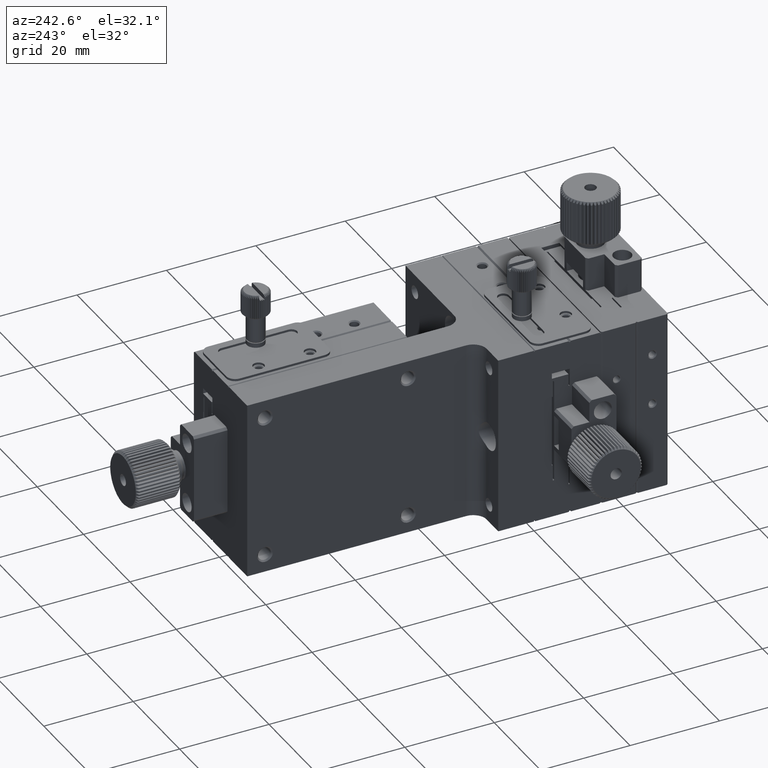
[diagram: clean part render]
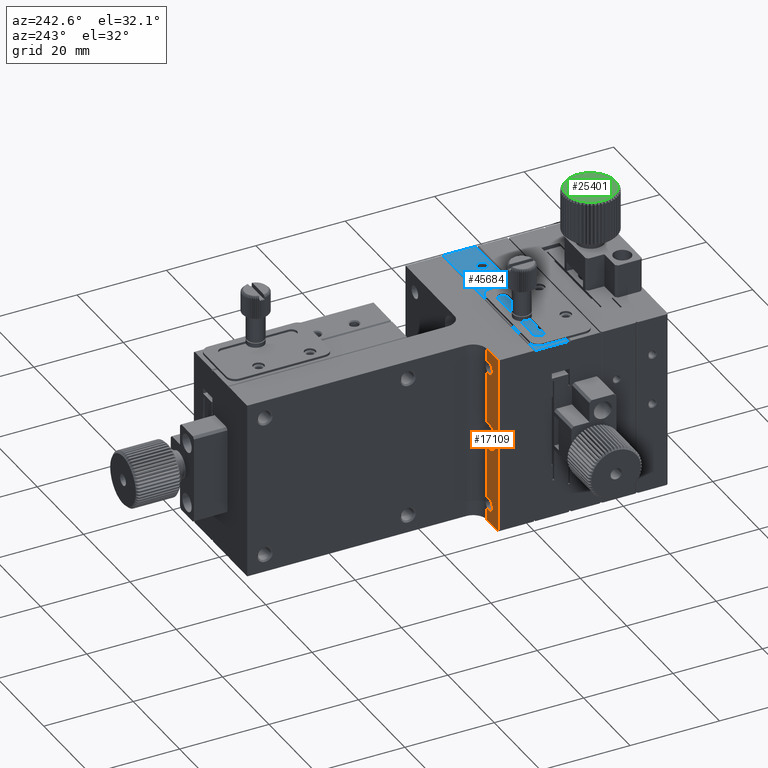
[diagram: same view with three faces highlighted in distinct colors, each labeled with its STEP entity id]
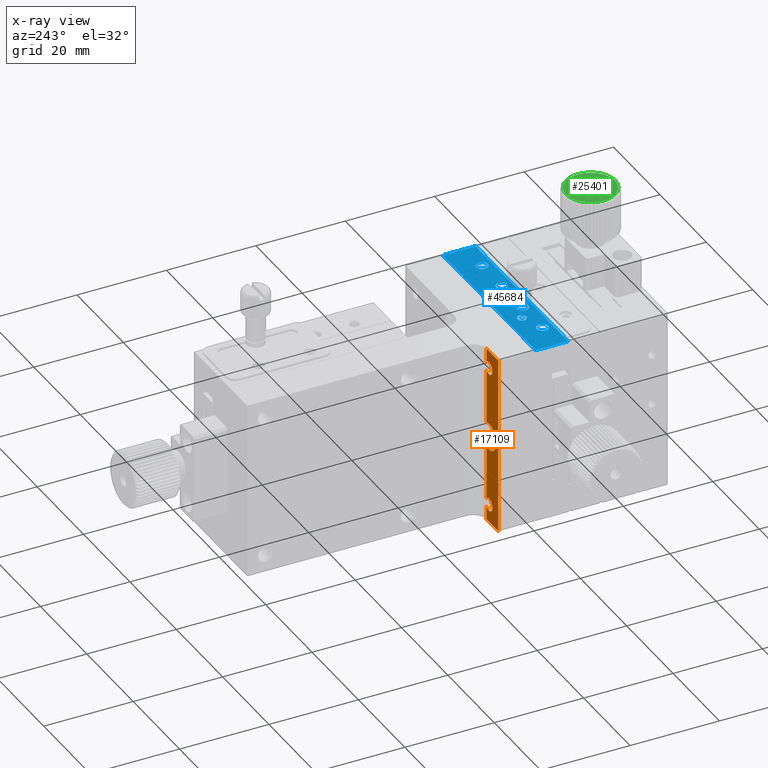
[diagram: x-ray of the same camera — body ghosted, the three highlighted faces saturated]
A machine part, auxiliary view with three faces highlighted in distinct colors.
The next image is the same camera in x-ray (body ghosted, the three faces saturated) — at least one of them is partly hidden behind the body in this view.
Their STEP definitions:

[orange] entity #17109 — the highlighted planar face has unit normal (0, 1, 0).
#295 = VECTOR ( 'NONE', #35096, 1000.000000000000000 ) ;
#416 = DIRECTION ( 'NONE',  ( 0.000000000000000000, -1.000000000000000000, 0.000000000000000000 ) ) ;
#515 = CARTESIAN_POINT ( 'NONE',  ( 19.00000000000000000, 8.000000000000000000, -40.00000000000000000 ) ) ;
#543 = ORIENTED_EDGE ( 'NONE', *, *, #46204, .T. ) ;
#919 = VERTEX_POINT ( 'NONE', #55570 ) ;
#979 = CARTESIAN_POINT ( 'NONE',  ( 5.000000000000030198, 8.000000000000000000, -40.00000000000000000 ) ) ;
#1668 = CARTESIAN_POINT ( 'NONE',  ( 5.000000000000030198, 8.000000000000000000, -5.015197025212317250 ) ) ;
#2906 = CARTESIAN_POINT ( 'NONE',  ( 2.797762022055394482E-14, 8.000000000000000000, 0.000000000000000000 ) ) ;
#4990 = DIRECTION ( 'NONE',  ( 0.000000000000000000, -1.000000000000000000, 0.000000000000000000 ) ) ;
#6053 = CARTESIAN_POINT ( 'NONE',  ( 5.000000000000030198, 8.000000000000000000, -40.00000000000000000 ) ) ;
#7003 = CARTESIAN_POINT ( 'NONE',  ( 5.000000000000031974, 8.000000000000000000, -34.98480297478769074 ) ) ;
#7033 = VERTEX_POINT ( 'NONE', #56806 ) ;
#8418 = DIRECTION ( 'NONE',  ( -0.000000000000000000, 0.000000000000000000, -1.000000000000000000 ) ) ;
#8702 = ORIENTED_EDGE ( 'NONE', *, *, #27277, .F. ) ;
#9150 = ORIENTED_EDGE ( 'NONE', *, *, #9802, .T. ) ;
#9209 = DIRECTION ( 'NONE',  ( -0.000000000000000000, 0.000000000000000000, -1.000000000000000000 ) ) ;
#9629 = LINE ( 'NONE', #46719, #20673 ) ;
#9762 = FACE_OUTER_BOUND ( 'NONE', #22554, .T. ) ;
#9802 = EDGE_CURVE ( 'NONE', #38147, #7033, #23329, .T. ) ;
#10083 = LINE ( 'NONE', #28609, #37278 ) ;
#10367 = VERTEX_POINT ( 'NONE', #7003 ) ;
#10438 = VECTOR ( 'NONE', #13849, 1000.000000000000000 ) ;
#10811 = ORIENTED_EDGE ( 'NONE', *, *, #54390, .T. ) ;
#11015 = DIRECTION ( 'NONE',  ( 0.000000000000000000, 0.000000000000000000, -1.000000000000000000 ) ) ;
#12385 = DIRECTION ( 'NONE',  ( -0.000000000000000000, 0.000000000000000000, -1.000000000000000000 ) ) ;
#13849 = DIRECTION ( 'NONE',  ( -0.000000000000000000, -0.000000000000000000, -1.000000000000000000 ) ) ;
#16167 = EDGE_CURVE ( 'NONE', #60072, #7033, #41522, .T. ) ;
#17109 = ADVANCED_FACE ( 'NONE', ( #9762 ), #19173, .T. ) ;
#19173 = PLANE ( 'NONE',  #20096 ) ;
#19266 = VERTEX_POINT ( 'NONE', #32509 ) ;
#20070 = EDGE_CURVE ( 'NONE', #919, #54727, #37650, .T. ) ;
#20096 = AXIS2_PLACEMENT_3D ( 'NONE', #6053, #24918, #43471 ) ;
#20673 = VECTOR ( 'NONE', #8418, 1000.000000000000000 ) ;
#22379 = CIRCLE ( 'NONE', #34988, 1.425000000000000044 ) ;
#22554 = EDGE_LOOP ( 'NONE', ( #33304, #42366, #22597, #58258, #10811, #543, #49079, #9150, #27191, #8702 ) ) ;
#22597 = ORIENTED_EDGE ( 'NONE', *, *, #29153, .T. ) ;
#23187 = LINE ( 'NONE', #24070, #36236 ) ;
#23329 = LINE ( 'NONE', #515, #28279 ) ;
#24070 = CARTESIAN_POINT ( 'NONE',  ( 5.000000000000030198, 8.000000000000000000, -40.00000000000000000 ) ) ;
#24888 = EDGE_CURVE ( 'NONE', #44213, #27146, #22379, .T. ) ;
#24918 = DIRECTION ( 'NONE',  ( 0.000000000000000000, 1.000000000000000000, 0.000000000000000000 ) ) ;
#26279 = LINE ( 'NONE', #34790, #295 ) ;
#26363 = CARTESIAN_POINT ( 'NONE',  ( 5.000000000000030198, 8.000000000000000000, 0.000000000000000000 ) ) ;
#27044 = EDGE_CURVE ( 'NONE', #32571, #44213, #9629, .T. ) ;
#27146 = VERTEX_POINT ( 'NONE', #1668 ) ;
#27191 = ORIENTED_EDGE ( 'NONE', *, *, #16167, .F. ) ;
#27277 = EDGE_CURVE ( 'NONE', #32571, #60072, #26279, .T. ) ;
#28253 = CARTESIAN_POINT ( 'NONE',  ( 5.000000000000026645, 8.000000000000000000, -22.82842712474618097 ) ) ;
#28279 = VECTOR ( 'NONE', #56415, 1000.000000000000000 ) ;
#28609 = CARTESIAN_POINT ( 'NONE',  ( 5.000000000000030198, 8.000000000000000000, -40.00000000000000000 ) ) ;
#29153 = EDGE_CURVE ( 'NONE', #27146, #919, #10083, .T. ) ;
#31882 = CIRCLE ( 'NONE', #43570, 1.425000000000002709 ) ;
#32509 = CARTESIAN_POINT ( 'NONE',  ( 5.000000000000035527, 8.000000000000000000, -37.01519702521231636 ) ) ;
#32571 = VERTEX_POINT ( 'NONE', #26363 ) ;
#33304 = ORIENTED_EDGE ( 'NONE', *, *, #27044, .T. ) ;
#33523 = CARTESIAN_POINT ( 'NONE',  ( 4.000000000000000000, 8.000000000000000000, -20.00000000000000000 ) ) ;
#34790 = CARTESIAN_POINT ( 'NONE',  ( 19.00000000000000000, 8.000000000000000000, 0.000000000000000000 ) ) ;
#34988 = AXIS2_PLACEMENT_3D ( 'NONE', #46934, #416, #51480 ) ;
#35096 = DIRECTION ( 'NONE',  ( -1.000000000000000000, -0.000000000000000000, 0.000000000000000000 ) ) ;
#36047 = CARTESIAN_POINT ( 'NONE',  ( 2.842170943040400112E-14, 8.000000000000000000, -40.00000000000000000 ) ) ;
#36236 = VECTOR ( 'NONE', #41720, 1000.000000000000000 ) ;
#36331 = DIRECTION ( 'NONE',  ( 0.000000000000000000, 0.000000000000000000, -1.000000000000000000 ) ) ;
#37278 = VECTOR ( 'NONE', #12385, 1000.000000000000000 ) ;
#37650 = CIRCLE ( 'NONE', #38592, 2.999999999999999112 ) ;
#38147 = VERTEX_POINT ( 'NONE', #57399 ) ;
#38592 = AXIS2_PLACEMENT_3D ( 'NONE', #33523, #52638, #11015 ) ;
#41522 = LINE ( 'NONE', #36047, #10438 ) ;
#41720 = DIRECTION ( 'NONE',  ( -0.000000000000000000, 0.000000000000000000, -1.000000000000000000 ) ) ;
#42366 = ORIENTED_EDGE ( 'NONE', *, *, #24888, .T. ) ;
#43125 = VECTOR ( 'NONE', #9209, 1000.000000000000000 ) ;
#43471 = DIRECTION ( 'NONE',  ( 0.000000000000000000, -0.000000000000000000, 1.000000000000000000 ) ) ;
#43570 = AXIS2_PLACEMENT_3D ( 'NONE', #51198, #4990, #36331 ) ;
#44213 = VERTEX_POINT ( 'NONE', #59891 ) ;
#46204 = EDGE_CURVE ( 'NONE', #10367, #19266, #31882, .T. ) ;
#46719 = CARTESIAN_POINT ( 'NONE',  ( 5.000000000000030198, 8.000000000000000000, -40.00000000000000000 ) ) ;
#46896 = LINE ( 'NONE', #979, #43125 ) ;
#46934 = CARTESIAN_POINT ( 'NONE',  ( 4.000000000000000000, 8.000000000000000000, -4.000000000000000000 ) ) ;
#49079 = ORIENTED_EDGE ( 'NONE', *, *, #53177, .T. ) ;
#51198 = CARTESIAN_POINT ( 'NONE',  ( 4.000000000000000000, 8.000000000000000000, -36.00000000000000711 ) ) ;
#51480 = DIRECTION ( 'NONE',  ( 0.000000000000000000, 0.000000000000000000, -1.000000000000000000 ) ) ;
#52638 = DIRECTION ( 'NONE',  ( 0.000000000000000000, -1.000000000000000000, 0.000000000000000000 ) ) ;
#53177 = EDGE_CURVE ( 'NONE', #19266, #38147, #23187, .T. ) ;
#54390 = EDGE_CURVE ( 'NONE', #54727, #10367, #46896, .T. ) ;
#54727 = VERTEX_POINT ( 'NONE', #28253 ) ;
#55570 = CARTESIAN_POINT ( 'NONE',  ( 5.000000000000026645, 8.000000000000000000, -17.17157287525381903 ) ) ;
#56415 = DIRECTION ( 'NONE',  ( -1.000000000000000000, -0.000000000000000000, 0.000000000000000000 ) ) ;
#56806 = CARTESIAN_POINT ( 'NONE',  ( 2.797762022055394482E-14, 8.000000000000000000, -40.00000000000000000 ) ) ;
#57399 = CARTESIAN_POINT ( 'NONE',  ( 5.000000000000030198, 8.000000000000000000, -40.00000000000000000 ) ) ;
#58258 = ORIENTED_EDGE ( 'NONE', *, *, #20070, .T. ) ;
#59891 = CARTESIAN_POINT ( 'NONE',  ( 5.000000000000030198, 8.000000000000000000, -2.984802974787681862 ) ) ;
#60072 = VERTEX_POINT ( 'NONE', #2906 ) ;

[blue] entity #45684 — the highlighted planar face has unit normal (0, -0, -1).
#420 = VERTEX_POINT ( 'NONE', #7418 ) ;
#799 = CARTESIAN_POINT ( 'NONE',  ( 0.000000000000000000, -0.3000000000000110911, -1.428598992575523340E-14 ) ) ;
#854 = AXIS2_PLACEMENT_3D ( 'NONE', #55609, #55911, #9736 ) ;
#1698 = CARTESIAN_POINT ( 'NONE',  ( 40.00000000000000000, -7.699999999999989519, -1.332463677593694361E-14 ) ) ;
#2029 = EDGE_LOOP ( 'NONE', ( #59580 ) ) ;
#2427 = FACE_BOUND ( 'NONE', #2029, .T. ) ;
#6626 = DIRECTION ( 'NONE',  ( 1.000000000000000000, 0.000000000000000000, 0.000000000000000000 ) ) ;
#7288 = CARTESIAN_POINT ( 'NONE',  ( 40.00000000000000000, -0.3000000000000109801, -1.415534356397070014E-14 ) ) ;
#7418 = CARTESIAN_POINT ( 'NONE',  ( 0.000000000000000000, -7.699999999999991296, -1.353132623041149944E-14 ) ) ;
#8004 = CARTESIAN_POINT ( 'NONE',  ( 40.00000000000000000, 0.000000000000000000, -1.414883835093579973E-14 ) ) ;
#8817 = DIRECTION ( 'NONE',  ( -1.000000000000000000, -0.000000000000000000, -0.000000000000000000 ) ) ;
#9147 = ORIENTED_EDGE ( 'NONE', *, *, #40307, .F. ) ;
#9216 = DIRECTION ( 'NONE',  ( 0.000000000000000000, -1.000000000000000000, -0.000000000000000000 ) ) ;
#9736 = DIRECTION ( 'NONE',  ( -1.000000000000000000, 0.000000000000000000, 0.000000000000000000 ) ) ;
#11159 = VERTEX_POINT ( 'NONE', #1698 ) ;
#12163 = DIRECTION ( 'NONE',  ( 0.000000000000000000, 1.000000000000000000, -1.199279573124600109E-16 ) ) ;
#12496 = CARTESIAN_POINT ( 'NONE',  ( 24.50000000000000000, -5.500000000000000000, 0.000000000000000000 ) ) ;
#13316 = DIRECTION ( 'NONE',  ( 1.000000000000000000, 0.000000000000000000, 0.000000000000000000 ) ) ;
#15505 = VERTEX_POINT ( 'NONE', #47984 ) ;
#16871 = AXIS2_PLACEMENT_3D ( 'NONE', #12496, #55338, #31040 ) ;
#18442 = ORIENTED_EDGE ( 'NONE', *, *, #39400, .F. ) ;
#19539 = EDGE_LOOP ( 'NONE', ( #18442 ) ) ;
#20343 = CARTESIAN_POINT ( 'NONE',  ( 15.50000000000000000, -5.500000000000000000, 0.000000000000000000 ) ) ;
#20472 = AXIS2_PLACEMENT_3D ( 'NONE', #53125, #48281, #6626 ) ;
#20738 = CIRCLE ( 'NONE', #16871, 1.249999999959526598 ) ;
#20907 = CARTESIAN_POINT ( 'NONE',  ( 11.00000000000000178, -3.500000000000000000, 0.000000000000000000 ) ) ;
#20981 = FACE_OUTER_BOUND ( 'NONE', #37742, .T. ) ;
#22489 = CARTESIAN_POINT ( 'NONE',  ( 40.00000000000000000, -7.699999999999990408, -1.326787667985849922E-14 ) ) ;
#22796 = VERTEX_POINT ( 'NONE', #28239 ) ;
#23129 = AXIS2_PLACEMENT_3D ( 'NONE', #7288, #25838, #12163 ) ;
#23611 = AXIS2_PLACEMENT_3D ( 'NONE', #52838, #24309, #29739 ) ;
#23847 = CIRCLE ( 'NONE', #41337, 1.250000000001818989 ) ;
#24309 = DIRECTION ( 'NONE',  ( 0.000000000000000000, -0.000000000000000000, 1.000000000000000000 ) ) ;
#24758 = VECTOR ( 'NONE', #9216, 1000.000000000000000 ) ;
#25838 = DIRECTION ( 'NONE',  ( 0.000000000000000000, -1.199279573124600109E-16, -1.000000000000000000 ) ) ;
#26507 = CARTESIAN_POINT ( 'NONE',  ( 34.24999999998590283, -5.500000000000000000, -1.326971327664851914E-20 ) ) ;
#27524 = ORIENTED_EDGE ( 'NONE', *, *, #50968, .F. ) ;
#28031 = VERTEX_POINT ( 'NONE', #32598 ) ;
#28239 = CARTESIAN_POINT ( 'NONE',  ( 8.250000000032287062, -5.500000000000000000, 0.000000000000000000 ) ) ;
#29432 = VECTOR ( 'NONE', #50137, 1000.000000000000000 ) ;
#29739 = DIRECTION ( 'NONE',  ( 1.000000000000000000, 0.000000000000000000, 0.000000000000000000 ) ) ;
#30393 = PLANE ( 'NONE',  #23129 ) ;
#30401 = CARTESIAN_POINT ( 'NONE',  ( 0.000000000000000000, 0.000000000000000000, -1.414883835093579973E-14 ) ) ;
#31040 = DIRECTION ( 'NONE',  ( 1.000000000000000000, 0.000000000000000000, 0.000000000000000000 ) ) ;
#32119 = ORIENTED_EDGE ( 'NONE', *, *, #58496, .T. ) ;
#32196 = EDGE_CURVE ( 'NONE', #11159, #420, #45910, .T. ) ;
#32598 = CARTESIAN_POINT ( 'NONE',  ( 16.75000000000181899, -5.500000000000000000, 0.000000000000000000 ) ) ;
#32719 = VERTEX_POINT ( 'NONE', #799 ) ;
#35694 = EDGE_CURVE ( 'NONE', #49914, #49914, #53705, .T. ) ;
#36710 = VECTOR ( 'NONE', #45844, 1000.000000000000000 ) ;
#37742 = EDGE_LOOP ( 'NONE', ( #37748, #44274, #32119, #58462 ) ) ;
#37748 = ORIENTED_EDGE ( 'NONE', *, *, #32196, .F. ) ;
#37769 = VERTEX_POINT ( 'NONE', #55977 ) ;
#38716 = EDGE_CURVE ( 'NONE', #15505, #11159, #50833, .T. ) ;
#39400 = EDGE_CURVE ( 'NONE', #28031, #28031, #23847, .T. ) ;
#39542 = FACE_BOUND ( 'NONE', #19539, .T. ) ;
#40307 = EDGE_CURVE ( 'NONE', #37769, #37769, #20738, .T. ) ;
#41337 = AXIS2_PLACEMENT_3D ( 'NONE', #20343, #44936, #13316 ) ;
#44274 = ORIENTED_EDGE ( 'NONE', *, *, #38716, .F. ) ;
#44936 = DIRECTION ( 'NONE',  ( 0.000000000000000000, -0.000000000000000000, 1.000000000000000000 ) ) ;
#45684 = ADVANCED_FACE ( 'NONE', ( #20981, #2427, #57460, #39542, #58055, #53801 ), #30393, .F. ) ;
#45844 = DIRECTION ( 'NONE',  ( -1.000000000000000000, -0.000000000000000000, -0.000000000000000000 ) ) ;
#45910 = LINE ( 'NONE', #22489, #47314 ) ;
#47314 = VECTOR ( 'NONE', #8817, 1000.000000000000000 ) ;
#47984 = CARTESIAN_POINT ( 'NONE',  ( 40.00000000000000000, -0.3000000000000109801, -1.423177981713095502E-14 ) ) ;
#48281 = DIRECTION ( 'NONE',  ( 0.000000000000000000, -0.000000000000000000, 1.000000000000000000 ) ) ;
#49467 = VERTEX_POINT ( 'NONE', #20907 ) ;
#49625 = CIRCLE ( 'NONE', #20472, 1.250000000032286840 ) ;
#49914 = VERTEX_POINT ( 'NONE', #26507 ) ;
#50137 = DIRECTION ( 'NONE',  ( 0.000000000000000000, -1.000000000000000000, -0.000000000000000000 ) ) ;
#50370 = CARTESIAN_POINT ( 'NONE',  ( 40.00000000000000000, -0.3000000000000112577, -1.441988889405720897E-14 ) ) ;
#50833 = LINE ( 'NONE', #8004, #24758 ) ;
#50968 = EDGE_CURVE ( 'NONE', #22796, #22796, #49625, .T. ) ;
#51802 = EDGE_LOOP ( 'NONE', ( #27524 ) ) ;
#52758 = EDGE_LOOP ( 'NONE', ( #53147 ) ) ;
#52838 = CARTESIAN_POINT ( 'NONE',  ( 33.00000000000000000, -5.500000000000000000, -1.326971327664851914E-20 ) ) ;
#53125 = CARTESIAN_POINT ( 'NONE',  ( 7.000000000000000000, -5.500000000000000000, 0.000000000000000000 ) ) ;
#53147 = ORIENTED_EDGE ( 'NONE', *, *, #35694, .F. ) ;
#53365 = EDGE_CURVE ( 'NONE', #32719, #420, #53807, .T. ) ;
#53705 = CIRCLE ( 'NONE', #23611, 1.249999999985901278 ) ;
#53801 = FACE_BOUND ( 'NONE', #52758, .T. ) ;
#53807 = LINE ( 'NONE', #30401, #29432 ) ;
#55338 = DIRECTION ( 'NONE',  ( 0.000000000000000000, -0.000000000000000000, 1.000000000000000000 ) ) ;
#55609 = CARTESIAN_POINT ( 'NONE',  ( 12.00000000000000000, -3.500000000000000000, 0.000000000000000000 ) ) ;
#55911 = DIRECTION ( 'NONE',  ( -0.000000000000000000, -0.000000000000000000, 1.000000000000000000 ) ) ;
#55977 = CARTESIAN_POINT ( 'NONE',  ( 25.74999999995952749, -5.500000000000000000, 0.000000000000000000 ) ) ;
#57460 = FACE_BOUND ( 'NONE', #51802, .T. ) ;
#57964 = EDGE_LOOP ( 'NONE', ( #9147 ) ) ;
#58055 = FACE_BOUND ( 'NONE', #57964, .T. ) ;
#58462 = ORIENTED_EDGE ( 'NONE', *, *, #53365, .T. ) ;
#58496 = EDGE_CURVE ( 'NONE', #15505, #32719, #60098, .T. ) ;
#59063 = CIRCLE ( 'NONE', #854, 0.9999999999999991118 ) ;
#59320 = EDGE_CURVE ( 'NONE', #49467, #49467, #59063, .T. ) ;
#59580 = ORIENTED_EDGE ( 'NONE', *, *, #59320, .F. ) ;
#60098 = LINE ( 'NONE', #50370, #36710 ) ;

[green] entity #25401 — the highlighted planar face has unit normal (0, 0, -1).
#135 = CARTESIAN_POINT ( 'NONE',  ( 22.94704737240612502, -27.64380359029528123, 20.50000000000000000 ) ) ;
#388 = CARTESIAN_POINT ( 'NONE',  ( 25.45663085726977570, -23.68933278460878711, 20.50000000000000000 ) ) ;
#558 = CARTESIAN_POINT ( 'NONE',  ( 15.55040653090500591, -26.23281888763233383, 20.50000000000000000 ) ) ;
#917 = DIRECTION ( 'NONE',  ( 0.000000000000000000, 1.000000000000000000, 0.000000000000000000 ) ) ;
#1007 = CARTESIAN_POINT ( 'NONE',  ( 20.00000000000000000, -23.00000000000000000, 20.50000000000000000 ) ) ;
#1136 = EDGE_LOOP ( 'NONE', ( #4960, #50414, #2700, #2037, #19929, #49140, #14032, #22829, #25382, #34413, #56063, #41245, #22436, #55136, #27905, #18724, #48471, #14532, #6119, #24391, #42683, #1299, #43404, #38611, #26198, #32013, #30566, #51740, #17677, #33159, #10996, #42447, #33296, #35857, #32042, #54133, #31130, #44318, #42611, #23172, #13999, #55217, #33354, #48856, #50276, #54428, #13024, #60018, #53401, #1955 ) ) ;
#1180 = AXIS2_PLACEMENT_3D ( 'NONE', #42273, #55627, #917 ) ;
#1299 = ORIENTED_EDGE ( 'NONE', *, *, #59239, .F. ) ;
#1381 = DIRECTION ( 'NONE',  ( 0.000000000000000000, 0.000000000000000000, -1.000000000000000000 ) ) ;
#1629 = DIRECTION ( 'NONE',  ( 0.000000000000000000, 1.000000000000000000, 0.000000000000000000 ) ) ;
#1662 = AXIS2_PLACEMENT_3D ( 'NONE', #34963, #41041, #17322 ) ;
#1839 = CARTESIAN_POINT ( 'NONE',  ( 20.00000000000000000, -23.00000000000000000, 20.50000000000000000 ) ) ;
#1955 = ORIENTED_EDGE ( 'NONE', *, *, #31341, .F. ) ;
#2037 = ORIENTED_EDGE ( 'NONE', *, *, #16647, .F. ) ;
#2271 = EDGE_CURVE ( 'NONE', #26344, #3366, #34297, .T. ) ;
#2304 = AXIS2_PLACEMENT_3D ( 'NONE', #15453, #16053, #6315 ) ;
#2449 = DIRECTION ( 'NONE',  ( 0.000000000000000000, 1.000000000000000000, 0.000000000000000000 ) ) ;
#2648 = CARTESIAN_POINT ( 'NONE',  ( 20.00000000000000000, -23.00000000000000000, 20.50000000000000000 ) ) ;
#2700 = ORIENTED_EDGE ( 'NONE', *, *, #58093, .F. ) ;
#2956 = DIRECTION ( 'NONE',  ( 0.000000000000000000, 1.000000000000000000, 0.000000000000000000 ) ) ;
#3141 = CARTESIAN_POINT ( 'NONE',  ( 14.54336914273021897, -22.31066721539125197, 20.50000000000000000 ) ) ;
#3168 = ORIENTED_EDGE ( 'NONE', *, *, #3844, .F. ) ;
#3366 = VERTEX_POINT ( 'NONE', #49786 ) ;
#3406 = CARTESIAN_POINT ( 'NONE',  ( 22.94704737240619608, -18.35619640970475430, 20.50000000000000000 ) ) ;
#3472 = CARTESIAN_POINT ( 'NONE',  ( 20.00000000000000000, -23.00000000000000000, 20.50000000000000000 ) ) ;
#3537 = VERTEX_POINT ( 'NONE', #4794 ) ;
#3575 = DIRECTION ( 'NONE',  ( 0.000000000000000000, 0.000000000000000000, -1.000000000000000000 ) ) ;
#3624 = DIRECTION ( 'NONE',  ( 0.000000000000000000, 0.000000000000000000, -1.000000000000000000 ) ) ;
#3844 = EDGE_CURVE ( 'NONE', #39912, #39912, #41358, .T. ) ;
#3918 = CIRCLE ( 'NONE', #30131, 5.500000000040472514 ) ;
#3964 = VERTEX_POINT ( 'NONE', #59989 ) ;
#3995 = AXIS2_PLACEMENT_3D ( 'NONE', #57310, #1381, #43351 ) ;
#4146 = DIRECTION ( 'NONE',  ( 0.000000000000000000, 0.000000000000000000, -1.000000000000000000 ) ) ;
#4434 = AXIS2_PLACEMENT_3D ( 'NONE', #30946, #8155, #59202 ) ;
#4525 = CARTESIAN_POINT ( 'NONE',  ( 20.00000000000000000, -23.00000000000000000, 20.50000000000000000 ) ) ;
#4736 = VERTEX_POINT ( 'NONE', #558 ) ;
#4794 = CARTESIAN_POINT ( 'NONE',  ( 25.32720738624665913, -24.36779437941680726, 20.50000000000000000 ) ) ;
#4960 = ORIENTED_EDGE ( 'NONE', *, *, #57376, .F. ) ;
#4972 = AXIS2_PLACEMENT_3D ( 'NONE', #38039, #24044, #29189 ) ;
#4979 = EDGE_CURVE ( 'NONE', #24834, #51964, #57818, .T. ) ;
#5058 = CARTESIAN_POINT ( 'NONE',  ( 20.00000000000000000, -23.00000000000000000, 20.50000000000000000 ) ) ;
#5212 = CARTESIAN_POINT ( 'NONE',  ( 14.49999999995952749, -23.00000000000000000, 20.50000000000000000 ) ) ;
#5216 = AXIS2_PLACEMENT_3D ( 'NONE', #5058, #4146, #18463 ) ;
#5369 = DIRECTION ( 'NONE',  ( 0.000000000000000000, 1.000000000000000000, 0.000000000000000000 ) ) ;
#5385 = EDGE_CURVE ( 'NONE', #50762, #46152, #37519, .T. ) ;
#5844 = DIRECTION ( 'NONE',  ( 0.000000000000000000, 1.000000000000000000, 0.000000000000000000 ) ) ;
#5860 = CARTESIAN_POINT ( 'NONE',  ( 20.00000000000000000, -23.00000000000000000, 20.50000000000000000 ) ) ;
#6020 = CIRCLE ( 'NONE', #1180, 5.500000000040472514 ) ;
#6112 = CARTESIAN_POINT ( 'NONE',  ( 20.00000000000000000, -23.00000000000000000, 20.50000000000000000 ) ) ;
#6119 = ORIENTED_EDGE ( 'NONE', *, *, #33004, .F. ) ;
#6315 = DIRECTION ( 'NONE',  ( 0.000000000000000000, 1.000000000000000000, 0.000000000000000000 ) ) ;
#6342 = VERTEX_POINT ( 'NONE', #45097 ) ;
#6633 = EDGE_CURVE ( 'NONE', #58219, #32268, #33750, .T. ) ;
#6645 = AXIS2_PLACEMENT_3D ( 'NONE', #44192, #34746, #7381 ) ;
#6836 = AXIS2_PLACEMENT_3D ( 'NONE', #42158, #52145, #28751 ) ;
#6842 = CARTESIAN_POINT ( 'NONE',  ( 14.88622932757695949, -25.02468503978055736, 20.50000000000000000 ) ) ;
#7139 = CARTESIAN_POINT ( 'NONE',  ( 25.11377067242302630, -20.97531496021940711, 20.50000000000000000 ) ) ;
#7144 = CIRCLE ( 'NONE', #34322, 5.500000000040472514 ) ;
#7381 = DIRECTION ( 'NONE',  ( 0.000000000000000000, 1.000000000000000000, 0.000000000000000000 ) ) ;
#7480 = VERTEX_POINT ( 'NONE', #31182 ) ;
#7498 = CIRCLE ( 'NONE', #40505, 5.500000000040472514 ) ;
#7525 = CIRCLE ( 'NONE', #31830, 5.500000000040472514 ) ;
#7609 = CIRCLE ( 'NONE', #6645, 5.500000000040472514 ) ;
#7615 = DIRECTION ( 'NONE',  ( 0.000000000000000000, 0.000000000000000000, -1.000000000000000000 ) ) ;
#7630 = DIRECTION ( 'NONE',  ( 0.000000000000000000, 1.000000000000000000, 0.000000000000000000 ) ) ;
#7757 = AXIS2_PLACEMENT_3D ( 'NONE', #3472, #22025, #40588 ) ;
#8045 = DIRECTION ( 'NONE',  ( 0.000000000000000000, 0.000000000000000000, -1.000000000000000000 ) ) ;
#8155 = DIRECTION ( 'NONE',  ( 0.000000000000000000, 0.000000000000000000, -1.000000000000000000 ) ) ;
#8162 = CARTESIAN_POINT ( 'NONE',  ( 20.00000000000000000, -23.00000000000000000, 20.50000000000000000 ) ) ;
#8419 = CIRCLE ( 'NONE', #42395, 5.500000000040472514 ) ;
#8650 = AXIS2_PLACEMENT_3D ( 'NONE', #46149, #14198, #11049 ) ;
#8943 = DIRECTION ( 'NONE',  ( 0.000000000000000000, 1.000000000000000000, 0.000000000000000000 ) ) ;
#9115 = EDGE_CURVE ( 'NONE', #51964, #29943, #55484, .T. ) ;
#9251 = VERTEX_POINT ( 'NONE', #46920 ) ;
#9404 = CARTESIAN_POINT ( 'NONE',  ( 21.03059723022901650, -28.40257987904755055, 20.50000000000000000 ) ) ;
#9459 = CIRCLE ( 'NONE', #1662, 5.500000000040472514 ) ;
#9496 = CARTESIAN_POINT ( 'NONE',  ( 20.00000000000000000, -23.00000000000000000, 20.50000000000000000 ) ) ;
#9507 = CARTESIAN_POINT ( 'NONE',  ( 20.00000000000000000, -23.00000000000000000, 20.50000000000000000 ) ) ;
#9521 = CARTESIAN_POINT ( 'NONE',  ( 14.67279261375330890, -24.36779437941669357, 20.50000000000000000 ) ) ;
#9790 = AXIS2_PLACEMENT_3D ( 'NONE', #50431, #19122, #17913 ) ;
#9860 = CIRCLE ( 'NONE', #56378, 5.500000000040472514 ) ;
#9877 = CARTESIAN_POINT ( 'NONE',  ( 20.00000000000000000, -23.00000000000000000, 20.50000000000000000 ) ) ;
#9892 = CIRCLE ( 'NONE', #3995, 5.500000000040472514 ) ;
#9963 = CARTESIAN_POINT ( 'NONE',  ( 25.45663085726978636, -22.31066721539129105, 20.50000000000000000 ) ) ;
#10078 = DIRECTION ( 'NONE',  ( 0.000000000000000000, 1.000000000000000000, 0.000000000000000000 ) ) ;
#10715 = AXIS2_PLACEMENT_3D ( 'NONE', #44073, #39206, #35847 ) ;
#10767 = CARTESIAN_POINT ( 'NONE',  ( 20.00000000000000000, -23.00000000000000000, 20.50000000000000000 ) ) ;
#10996 = ORIENTED_EDGE ( 'NONE', *, *, #5385, .F. ) ;
#11049 = DIRECTION ( 'NONE',  ( 0.000000000000000000, 1.000000000000000000, 0.000000000000000000 ) ) ;
#11169 = EDGE_CURVE ( 'NONE', #35999, #4736, #37685, .T. ) ;
#11996 = EDGE_CURVE ( 'NONE', #46152, #14463, #53272, .T. ) ;
#12211 = VERTEX_POINT ( 'NONE', #16217 ) ;
#12330 = VERTEX_POINT ( 'NONE', #9521 ) ;
#12338 = CARTESIAN_POINT ( 'NONE',  ( 20.00000000000000000, -23.00000000000000000, 20.50000000000000000 ) ) ;
#12604 = AXIS2_PLACEMENT_3D ( 'NONE', #38208, #56420, #5369 ) ;
#12826 = EDGE_CURVE ( 'NONE', #22000, #51618, #23318, .T. ) ;
#12872 = DIRECTION ( 'NONE',  ( 0.000000000000000000, 0.000000000000000000, -1.000000000000000000 ) ) ;
#12924 = DIRECTION ( 'NONE',  ( 0.000000000000000000, 0.000000000000000000, -1.000000000000000000 ) ) ;
#13024 = ORIENTED_EDGE ( 'NONE', *, *, #25456, .F. ) ;
#13076 = EDGE_CURVE ( 'NONE', #31140, #44810, #43733, .T. ) ;
#13174 = CIRCLE ( 'NONE', #4434, 5.500000000040472514 ) ;
#13250 = VERTEX_POINT ( 'NONE', #6842 ) ;
#13339 = CARTESIAN_POINT ( 'NONE',  ( 18.96940276977087336, -28.40257987904753278, 20.50000000000000000 ) ) ;
#13787 = AXIS2_PLACEMENT_3D ( 'NONE', #36042, #45482, #39712 ) ;
#13999 = ORIENTED_EDGE ( 'NONE', *, *, #43914, .F. ) ;
#14032 = ORIENTED_EDGE ( 'NONE', *, *, #11169, .F. ) ;
#14183 = EDGE_CURVE ( 'NONE', #51618, #3537, #44081, .T. ) ;
#14197 = DIRECTION ( 'NONE',  ( 0.000000000000000000, 0.000000000000000000, -1.000000000000000000 ) ) ;
#14198 = DIRECTION ( 'NONE',  ( 0.000000000000000000, 0.000000000000000000, -1.000000000000000000 ) ) ;
#14287 = AXIS2_PLACEMENT_3D ( 'NONE', #42356, #18647, #5844 ) ;
#14320 = AXIS2_PLACEMENT_3D ( 'NONE', #15551, #43537, #29525 ) ;
#14463 = VERTEX_POINT ( 'NONE', #7139 ) ;
#14532 = ORIENTED_EDGE ( 'NONE', *, *, #4979, .F. ) ;
#14629 = EDGE_CURVE ( 'NONE', #9251, #45120, #32494, .T. ) ;
#14644 = DIRECTION ( 'NONE',  ( 0.000000000000000000, 1.000000000000000000, 0.000000000000000000 ) ) ;
#14649 = DIRECTION ( 'NONE',  ( 0.000000000000000000, 0.000000000000000000, -1.000000000000000000 ) ) ;
#15074 = EDGE_CURVE ( 'NONE', #27762, #24480, #38408, .T. ) ;
#15453 = CARTESIAN_POINT ( 'NONE',  ( 20.00000000000000000, -23.00000000000000000, 20.50000000000000000 ) ) ;
#15551 = CARTESIAN_POINT ( 'NONE',  ( 20.00000000000000000, -23.00000000000000000, 20.50000000000000000 ) ) ;
#15679 = AXIS2_PLACEMENT_3D ( 'NONE', #39821, #26122, #44973 ) ;
#15746 = EDGE_CURVE ( 'NONE', #58310, #26344, #59626, .T. ) ;
#15938 = AXIS2_PLACEMENT_3D ( 'NONE', #9877, #43286, #47251 ) ;
#15985 = AXIS2_PLACEMENT_3D ( 'NONE', #30409, #26159, #35886 ) ;
#16053 = DIRECTION ( 'NONE',  ( 0.000000000000000000, 0.000000000000000000, -1.000000000000000000 ) ) ;
#16145 = DIRECTION ( 'NONE',  ( 0.000000000000000000, 1.000000000000000000, 0.000000000000000000 ) ) ;
#16217 = CARTESIAN_POINT ( 'NONE',  ( 23.50583194364355322, -27.23782283529805426, 20.50000000000000000 ) ) ;
#16647 = EDGE_CURVE ( 'NONE', #13250, #12330, #35637, .T. ) ;
#17071 = VERTEX_POINT ( 'NONE', #55343 ) ;
#17322 = DIRECTION ( 'NONE',  ( 0.000000000000000000, 1.000000000000000000, 0.000000000000000000 ) ) ;
#17390 = CARTESIAN_POINT ( 'NONE',  ( 20.00000000000000000, -24.25000000000000000, 20.50000000000000000 ) ) ;
#17476 = EDGE_CURVE ( 'NONE', #4736, #17071, #41728, .T. ) ;
#17489 = EDGE_CURVE ( 'NONE', #45049, #58310, #42729, .T. ) ;
#17677 = ORIENTED_EDGE ( 'NONE', *, *, #29140, .F. ) ;
#17790 = DIRECTION ( 'NONE',  ( 0.000000000000000000, 1.000000000000000000, 0.000000000000000000 ) ) ;
#17806 = VERTEX_POINT ( 'NONE', #26840 ) ;
#17913 = DIRECTION ( 'NONE',  ( 0.000000000000000000, 1.000000000000000000, 0.000000000000000000 ) ) ;
#18046 = VERTEX_POINT ( 'NONE', #9404 ) ;
#18084 = CIRCLE ( 'NONE', #34575, 5.500000000040472514 ) ;
#18114 = VERTEX_POINT ( 'NONE', #30231 ) ;
#18312 = DIRECTION ( 'NONE',  ( 0.000000000000000000, 0.000000000000000000, -1.000000000000000000 ) ) ;
#18339 = CARTESIAN_POINT ( 'NONE',  ( 16.49416805635635797, -27.23782283529798676, 20.50000000000000000 ) ) ;
#18463 = DIRECTION ( 'NONE',  ( 0.000000000000000000, 1.000000000000000000, 0.000000000000000000 ) ) ;
#18617 = AXIS2_PLACEMENT_3D ( 'NONE', #44809, #12872, #58761 ) ;
#18628 = CARTESIAN_POINT ( 'NONE',  ( 20.00000000000000000, -23.00000000000000000, 20.50000000000000000 ) ) ;
#18647 = DIRECTION ( 'NONE',  ( 0.000000000000000000, 0.000000000000000000, -1.000000000000000000 ) ) ;
#18724 = ORIENTED_EDGE ( 'NONE', *, *, #32314, .F. ) ;
#18830 = CIRCLE ( 'NONE', #2304, 5.500000000040472514 ) ;
#19122 = DIRECTION ( 'NONE',  ( 0.000000000000000000, 0.000000000000000000, -1.000000000000000000 ) ) ;
#19149 = CARTESIAN_POINT ( 'NONE',  ( 22.34178610362508266, -27.97654878859974659, 20.50000000000000000 ) ) ;
#19929 = ORIENTED_EDGE ( 'NONE', *, *, #24280, .F. ) ;
#20026 = CIRCLE ( 'NONE', #49146, 5.500000000040472514 ) ;
#20164 = CARTESIAN_POINT ( 'NONE',  ( 20.00000000000000000, -23.00000000000000000, 20.50000000000000000 ) ) ;
#20397 = DIRECTION ( 'NONE',  ( 0.000000000000000000, 0.000000000000000000, -1.000000000000000000 ) ) ;
#20695 = CARTESIAN_POINT ( 'NONE',  ( 20.00000000000000000, -23.00000000000000000, 20.50000000000000000 ) ) ;
#21543 = VERTEX_POINT ( 'NONE', #51692 ) ;
#21744 = CARTESIAN_POINT ( 'NONE',  ( 20.00000000000000000, -23.00000000000000000, 20.50000000000000000 ) ) ;
#21894 = AXIS2_PLACEMENT_3D ( 'NONE', #22084, #45201, #26040 ) ;
#22000 = VERTEX_POINT ( 'NONE', #23974 ) ;
#22025 = DIRECTION ( 'NONE',  ( 0.000000000000000000, 0.000000000000000000, -1.000000000000000000 ) ) ;
#22084 = CARTESIAN_POINT ( 'NONE',  ( 20.00000000000000000, -23.00000000000000000, 20.50000000000000000 ) ) ;
#22145 = DIRECTION ( 'NONE',  ( 0.000000000000000000, 1.000000000000000000, 0.000000000000000000 ) ) ;
#22184 = DIRECTION ( 'NONE',  ( 0.000000000000000000, 1.000000000000000000, 0.000000000000000000 ) ) ;
#22436 = ORIENTED_EDGE ( 'NONE', *, *, #15074, .F. ) ;
#22741 = DIRECTION ( 'NONE',  ( 0.000000000000000000, 1.000000000000000000, 0.000000000000000000 ) ) ;
#22829 = ORIENTED_EDGE ( 'NONE', *, *, #42766, .F. ) ;
#23082 = EDGE_CURVE ( 'NONE', #3964, #21543, #40850, .T. ) ;
#23101 = DIRECTION ( 'NONE',  ( 0.000000000000000000, 0.000000000000000000, -1.000000000000000000 ) ) ;
#23172 = ORIENTED_EDGE ( 'NONE', *, *, #27451, .F. ) ;
#23318 = CIRCLE ( 'NONE', #58206, 5.500000000040472514 ) ;
#23621 = DIRECTION ( 'NONE',  ( 0.000000000000000000, 1.000000000000000000, 0.000000000000000000 ) ) ;
#23629 = DIRECTION ( 'NONE',  ( 0.000000000000000000, 1.000000000000000000, 0.000000000000000000 ) ) ;
#23699 = CARTESIAN_POINT ( 'NONE',  ( 24.44959346909497810, -19.76718111236763420, 20.50000000000000000 ) ) ;
#23953 = CIRCLE ( 'NONE', #34587, 5.500000000040472514 ) ;
#23974 = CARTESIAN_POINT ( 'NONE',  ( 25.50000000004047251, -23.00000000000000000, 20.50000000000000000 ) ) ;
#24044 = DIRECTION ( 'NONE',  ( 0.000000000000000000, 0.000000000000000000, -1.000000000000000000 ) ) ;
#24234 = CARTESIAN_POINT ( 'NONE',  ( 15.99067254915268244, -26.76500908263544076, 20.50000000000000000 ) ) ;
#24280 = EDGE_CURVE ( 'NONE', #17071, #13250, #45662, .T. ) ;
#24391 = ORIENTED_EDGE ( 'NONE', *, *, #51753, .F. ) ;
#24412 = DIRECTION ( 'NONE',  ( 0.000000000000000000, 1.000000000000000000, 0.000000000000000000 ) ) ;
#24480 = VERTEX_POINT ( 'NONE', #13339 ) ;
#24704 = VERTEX_POINT ( 'NONE', #59684 ) ;
#24834 = VERTEX_POINT ( 'NONE', #135 ) ;
#25065 = EDGE_CURVE ( 'NONE', #3366, #17806, #9860, .T. ) ;
#25382 = ORIENTED_EDGE ( 'NONE', *, *, #52498, .F. ) ;
#25401 = ADVANCED_FACE ( 'NONE', ( #48625, #33452 ), #57444, .F. ) ;
#25456 = EDGE_CURVE ( 'NONE', #29778, #53686, #44820, .T. ) ;
#25630 = CARTESIAN_POINT ( 'NONE',  ( 18.30040653092522618, -28.23081083966182092, 20.50000000000000000 ) ) ;
#25672 = CIRCLE ( 'NONE', #15985, 5.500000000040472514 ) ;
#25704 = DIRECTION ( 'NONE',  ( 0.000000000000000000, 1.000000000000000000, 0.000000000000000000 ) ) ;
#25762 = EDGE_CURVE ( 'NONE', #3537, #33086, #9892, .T. ) ;
#25943 = CIRCLE ( 'NONE', #43401, 5.500000000040472514 ) ;
#26040 = DIRECTION ( 'NONE',  ( 0.000000000000000000, 1.000000000000000000, 0.000000000000000000 ) ) ;
#26122 = DIRECTION ( 'NONE',  ( 0.000000000000000000, 0.000000000000000000, -1.000000000000000000 ) ) ;
#26159 = DIRECTION ( 'NONE',  ( 0.000000000000000000, 0.000000000000000000, -1.000000000000000000 ) ) ;
#26162 = DIRECTION ( 'NONE',  ( 0.000000000000000000, 0.000000000000000000, -1.000000000000000000 ) ) ;
#26198 = ORIENTED_EDGE ( 'NONE', *, *, #14183, .F. ) ;
#26344 = VERTEX_POINT ( 'NONE', #3406 ) ;
#26417 = CIRCLE ( 'NONE', #41967, 5.500000000040472514 ) ;
#26691 = DIRECTION ( 'NONE',  ( 0.000000000000000000, 0.000000000000000000, -1.000000000000000000 ) ) ;
#26761 = AXIS2_PLACEMENT_3D ( 'NONE', #1007, #42665, #46030 ) ;
#26840 = CARTESIAN_POINT ( 'NONE',  ( 24.00932745084728737, -19.23499091736453082, 20.50000000000000000 ) ) ;
#26923 = CARTESIAN_POINT ( 'NONE',  ( 16.49416805635641481, -18.76217716470196706, 20.50000000000000000 ) ) ;
#27451 = EDGE_CURVE ( 'NONE', #41226, #7480, #59539, .T. ) ;
#27762 = VERTEX_POINT ( 'NONE', #58636 ) ;
#27905 = ORIENTED_EDGE ( 'NONE', *, *, #45679, .F. ) ;
#27968 = DIRECTION ( 'NONE',  ( 0.000000000000000000, 1.000000000000000000, 0.000000000000000000 ) ) ;
#28012 = CARTESIAN_POINT ( 'NONE',  ( 20.00000000000000000, -23.00000000000000000, 20.50000000000000000 ) ) ;
#28061 = EDGE_CURVE ( 'NONE', #18114, #6342, #7144, .T. ) ;
#28227 = CARTESIAN_POINT ( 'NONE',  ( 25.32720738624667689, -21.63220562058326735, 20.50000000000000000 ) ) ;
#28339 = DIRECTION ( 'NONE',  ( 0.000000000000000000, 1.000000000000000000, 0.000000000000000000 ) ) ;
#28476 = CIRCLE ( 'NONE', #29477, 5.500000000040472514 ) ;
#28751 = DIRECTION ( 'NONE',  ( 0.000000000000000000, 1.000000000000000000, 0.000000000000000000 ) ) ;
#28855 = DIRECTION ( 'NONE',  ( 0.000000000000000000, 0.000000000000000000, -1.000000000000000000 ) ) ;
#29137 = CARTESIAN_POINT ( 'NONE',  ( 22.34178610362515727, -18.02345121140028184, 20.50000000000000000 ) ) ;
#29140 = EDGE_CURVE ( 'NONE', #14463, #31140, #28476, .T. ) ;
#29189 = DIRECTION ( 'NONE',  ( 0.000000000000000000, 1.000000000000000000, 0.000000000000000000 ) ) ;
#29425 = CARTESIAN_POINT ( 'NONE',  ( 15.55040653090504676, -19.76718111236759867, 20.50000000000000000 ) ) ;
#29477 = AXIS2_PLACEMENT_3D ( 'NONE', #55969, #47175, #38648 ) ;
#29525 = DIRECTION ( 'NONE',  ( 0.000000000000000000, 1.000000000000000000, 0.000000000000000000 ) ) ;
#29702 = AXIS2_PLACEMENT_3D ( 'NONE', #18628, #14649, #46002 ) ;
#29778 = VERTEX_POINT ( 'NONE', #51248 ) ;
#29943 = VERTEX_POINT ( 'NONE', #57285 ) ;
#30076 = AXIS2_PLACEMENT_3D ( 'NONE', #41162, #59382, #45431 ) ;
#30131 = AXIS2_PLACEMENT_3D ( 'NONE', #20164, #52072, #33248 ) ;
#30231 = CARTESIAN_POINT ( 'NONE',  ( 24.44959346909492837, -26.23281888763242975, 20.50000000000000000 ) ) ;
#30409 = CARTESIAN_POINT ( 'NONE',  ( 20.00000000000000000, -23.00000000000000000, 20.50000000000000000 ) ) ;
#30566 = ORIENTED_EDGE ( 'NONE', *, *, #31556, .F. ) ;
#30946 = CARTESIAN_POINT ( 'NONE',  ( 20.00000000000000000, -23.00000000000000000, 20.50000000000000000 ) ) ;
#31027 = CARTESIAN_POINT ( 'NONE',  ( 20.00000000000000000, -23.00000000000000000, 20.50000000000000000 ) ) ;
#31130 = ORIENTED_EDGE ( 'NONE', *, *, #47570, .F. ) ;
#31140 = VERTEX_POINT ( 'NONE', #28227 ) ;
#31182 = CARTESIAN_POINT ( 'NONE',  ( 19.65465214258625437, -17.51085299360411085, 20.50000000000000000 ) ) ;
#31341 = EDGE_CURVE ( 'NONE', #55805, #58219, #39775, .T. ) ;
#31454 = CARTESIAN_POINT ( 'NONE',  ( 24.81968674027673316, -20.35035479242109346, 20.50000000000000000 ) ) ;
#31556 = EDGE_CURVE ( 'NONE', #44810, #22000, #3918, .T. ) ;
#31830 = AXIS2_PLACEMENT_3D ( 'NONE', #12338, #54885, #50011 ) ;
#32013 = ORIENTED_EDGE ( 'NONE', *, *, #12826, .F. ) ;
#32042 = ORIENTED_EDGE ( 'NONE', *, *, #15746, .F. ) ;
#32258 = EDGE_CURVE ( 'NONE', #17806, #50762, #25943, .T. ) ;
#32268 = VERTEX_POINT ( 'NONE', #59546 ) ;
#32314 = EDGE_CURVE ( 'NONE', #29943, #18046, #7498, .T. ) ;
#32494 = CIRCLE ( 'NONE', #15938, 5.500000000040472514 ) ;
#33004 = EDGE_CURVE ( 'NONE', #12211, #24834, #23953, .T. ) ;
#33041 = CIRCLE ( 'NONE', #45689, 5.500000000040472514 ) ;
#33086 = VERTEX_POINT ( 'NONE', #34064 ) ;
#33159 = ORIENTED_EDGE ( 'NONE', *, *, #11996, .F. ) ;
#33248 = DIRECTION ( 'NONE',  ( 0.000000000000000000, 1.000000000000000000, 0.000000000000000000 ) ) ;
#33296 = ORIENTED_EDGE ( 'NONE', *, *, #25065, .F. ) ;
#33354 = ORIENTED_EDGE ( 'NONE', *, *, #37675, .F. ) ;
#33452 = FACE_BOUND ( 'NONE', #52126, .T. ) ;
#33750 = CIRCLE ( 'NONE', #14320, 5.500000000040472514 ) ;
#33825 = DIRECTION ( 'NONE',  ( 0.000000000000000000, 0.000000000000000000, -1.000000000000000000 ) ) ;
#34064 = CARTESIAN_POINT ( 'NONE',  ( 25.11377067242299788, -25.02468503978067460, 20.50000000000000000 ) ) ;
#34297 = CIRCLE ( 'NONE', #41150, 5.500000000040472514 ) ;
#34322 = AXIS2_PLACEMENT_3D ( 'NONE', #2648, #34875, #2956 ) ;
#34372 = CARTESIAN_POINT ( 'NONE',  ( 20.00000000000000000, -23.00000000000000000, 20.50000000000000000 ) ) ;
#34413 = ORIENTED_EDGE ( 'NONE', *, *, #23082, .F. ) ;
#34575 = AXIS2_PLACEMENT_3D ( 'NONE', #54618, #46734, #23621 ) ;
#34587 = AXIS2_PLACEMENT_3D ( 'NONE', #9496, #18312, #53952 ) ;
#34746 = DIRECTION ( 'NONE',  ( 0.000000000000000000, 0.000000000000000000, -1.000000000000000000 ) ) ;
#34751 = DIRECTION ( 'NONE',  ( 0.000000000000000000, 1.000000000000000000, 0.000000000000000000 ) ) ;
#34875 = DIRECTION ( 'NONE',  ( 0.000000000000000000, 0.000000000000000000, -1.000000000000000000 ) ) ;
#34880 = EDGE_CURVE ( 'NONE', #53777, #46789, #58869, .T. ) ;
#34963 = CARTESIAN_POINT ( 'NONE',  ( 20.00000000000000000, -23.00000000000000000, 20.50000000000000000 ) ) ;
#35637 = CIRCLE ( 'NONE', #14287, 5.500000000040472514 ) ;
#35847 = DIRECTION ( 'NONE',  ( 0.000000000000000000, 1.000000000000000000, 0.000000000000000000 ) ) ;
#35857 = ORIENTED_EDGE ( 'NONE', *, *, #2271, .F. ) ;
#35886 = DIRECTION ( 'NONE',  ( 0.000000000000000000, 1.000000000000000000, 0.000000000000000000 ) ) ;
#35918 = CIRCLE ( 'NONE', #12604, 5.500000000040472514 ) ;
#35999 = VERTEX_POINT ( 'NONE', #24234 ) ;
#36042 = CARTESIAN_POINT ( 'NONE',  ( 20.00000000000000000, -23.00000000000000000, 20.50000000000000000 ) ) ;
#36083 = VERTEX_POINT ( 'NONE', #49120 ) ;
#36436 = AXIS2_PLACEMENT_3D ( 'NONE', #20695, #7615, #57763 ) ;
#36607 = VERTEX_POINT ( 'NONE', #42283 ) ;
#36608 = DIRECTION ( 'NONE',  ( 0.000000000000000000, 0.000000000000000000, -1.000000000000000000 ) ) ;
#37097 = CIRCLE ( 'NONE', #13787, 5.500000000040472514 ) ;
#37519 = CIRCLE ( 'NONE', #29702, 5.500000000040472514 ) ;
#37675 = EDGE_CURVE ( 'NONE', #36607, #52344, #39224, .T. ) ;
#37685 = CIRCLE ( 'NONE', #53187, 5.500000000040472514 ) ;
#38039 = CARTESIAN_POINT ( 'NONE',  ( 25.50000000000000355, -23.00000000000000000, 20.50000000000000000 ) ) ;
#38208 = CARTESIAN_POINT ( 'NONE',  ( 20.00000000000000000, -23.00000000000000000, 20.50000000000000000 ) ) ;
#38271 = AXIS2_PLACEMENT_3D ( 'NONE', #9507, #50818, #14644 ) ;
#38408 = CIRCLE ( 'NONE', #36436, 5.500000000040472514 ) ;
#38461 = EDGE_CURVE ( 'NONE', #24480, #59241, #44171, .T. ) ;
#38611 = ORIENTED_EDGE ( 'NONE', *, *, #25762, .F. ) ;
#38648 = DIRECTION ( 'NONE',  ( 0.000000000000000000, 1.000000000000000000, 0.000000000000000000 ) ) ;
#38765 = VERTEX_POINT ( 'NONE', #18339 ) ;
#38922 = VERTEX_POINT ( 'NONE', #57778 ) ;
#38941 = DIRECTION ( 'NONE',  ( 0.000000000000000000, 1.000000000000000000, 0.000000000000000000 ) ) ;
#39107 = CARTESIAN_POINT ( 'NONE',  ( 21.69959346907473829, -17.76918916033817197, 20.50000000000000000 ) ) ;
#39206 = DIRECTION ( 'NONE',  ( 0.000000000000000000, 0.000000000000000000, -1.000000000000000000 ) ) ;
#39224 = CIRCLE ( 'NONE', #38271, 5.500000000040472514 ) ;
#39263 = DIRECTION ( 'NONE',  ( 0.000000000000000000, 0.000000000000000000, -1.000000000000000000 ) ) ;
#39338 = DIRECTION ( 'NONE',  ( 0.000000000000000000, 0.000000000000000000, -1.000000000000000000 ) ) ;
#39464 = EDGE_CURVE ( 'NONE', #53686, #9251, #13174, .T. ) ;
#39490 = AXIS2_PLACEMENT_3D ( 'NONE', #56946, #39338, #34751 ) ;
#39712 = DIRECTION ( 'NONE',  ( 0.000000000000000000, 1.000000000000000000, 0.000000000000000000 ) ) ;
#39775 = CIRCLE ( 'NONE', #7757, 5.500000000040472514 ) ;
#39821 = CARTESIAN_POINT ( 'NONE',  ( 20.00000000000000000, -23.00000000000000000, 20.50000000000000000 ) ) ;
#39912 = VERTEX_POINT ( 'NONE', #17390 ) ;
#40462 = DIRECTION ( 'NONE',  ( 0.000000000000000000, 0.000000000000000000, -1.000000000000000000 ) ) ;
#40505 = AXIS2_PLACEMENT_3D ( 'NONE', #4525, #23101, #56774 ) ;
#40588 = DIRECTION ( 'NONE',  ( 0.000000000000000000, 1.000000000000000000, 0.000000000000000000 ) ) ;
#40850 = CIRCLE ( 'NONE', #9790, 5.500000000040472514 ) ;
#41041 = DIRECTION ( 'NONE',  ( 0.000000000000000000, 0.000000000000000000, -1.000000000000000000 ) ) ;
#41150 = AXIS2_PLACEMENT_3D ( 'NONE', #21744, #12924, #17790 ) ;
#41162 = CARTESIAN_POINT ( 'NONE',  ( 20.00000000000000000, -23.00000000000000000, 20.50000000000000000 ) ) ;
#41226 = VERTEX_POINT ( 'NONE', #50333 ) ;
#41245 = ORIENTED_EDGE ( 'NONE', *, *, #38461, .F. ) ;
#41285 = CARTESIAN_POINT ( 'NONE',  ( 20.00000000000000000, -23.00000000000000000, 20.50000000000000000 ) ) ;
#41358 = CIRCLE ( 'NONE', #26761, 1.250000000000001110 ) ;
#41728 = CIRCLE ( 'NONE', #43673, 5.500000000040472514 ) ;
#41740 = CIRCLE ( 'NONE', #46616, 5.500000000040472514 ) ;
#41967 = AXIS2_PLACEMENT_3D ( 'NONE', #54634, #3575, #49482 ) ;
#42017 = AXIS2_PLACEMENT_3D ( 'NONE', #8162, #26691, #22145 ) ;
#42158 = CARTESIAN_POINT ( 'NONE',  ( 20.00000000000000000, -23.00000000000000000, 20.50000000000000000 ) ) ;
#42227 = AXIS2_PLACEMENT_3D ( 'NONE', #10767, #47851, #1629 ) ;
#42273 = CARTESIAN_POINT ( 'NONE',  ( 20.00000000000000000, -23.00000000000000000, 20.50000000000000000 ) ) ;
#42283 = CARTESIAN_POINT ( 'NONE',  ( 17.05295262759383945, -18.35619640970473654, 20.50000000000000000 ) ) ;
#42356 = CARTESIAN_POINT ( 'NONE',  ( 20.00000000000000000, -23.00000000000000000, 20.50000000000000000 ) ) ;
#42395 = AXIS2_PLACEMENT_3D ( 'NONE', #31027, #39263, #7630 ) ;
#42447 = ORIENTED_EDGE ( 'NONE', *, *, #32258, .F. ) ;
#42611 = ORIENTED_EDGE ( 'NONE', *, *, #47970, .F. ) ;
#42665 = DIRECTION ( 'NONE',  ( 0.000000000000000000, 0.000000000000000000, 1.000000000000000000 ) ) ;
#42683 = ORIENTED_EDGE ( 'NONE', *, *, #28061, .F. ) ;
#42729 = CIRCLE ( 'NONE', #30076, 5.500000000040472514 ) ;
#42766 = EDGE_CURVE ( 'NONE', #38765, #35999, #20026, .T. ) ;
#42914 = EDGE_CURVE ( 'NONE', #24704, #60070, #8419, .T. ) ;
#43286 = DIRECTION ( 'NONE',  ( 0.000000000000000000, 0.000000000000000000, -1.000000000000000000 ) ) ;
#43351 = DIRECTION ( 'NONE',  ( 0.000000000000000000, 1.000000000000000000, 0.000000000000000000 ) ) ;
#43401 = AXIS2_PLACEMENT_3D ( 'NONE', #45297, #3624, #22184 ) ;
#43404 = ORIENTED_EDGE ( 'NONE', *, *, #49385, .F. ) ;
#43537 = DIRECTION ( 'NONE',  ( 0.000000000000000000, 0.000000000000000000, -1.000000000000000000 ) ) ;
#43673 = AXIS2_PLACEMENT_3D ( 'NONE', #50559, #36608, #8943 ) ;
#43733 = CIRCLE ( 'NONE', #6836, 5.500000000040472514 ) ;
#43914 = EDGE_CURVE ( 'NONE', #55198, #41226, #7525, .T. ) ;
#44027 = AXIS2_PLACEMENT_3D ( 'NONE', #28012, #8045, #10078 ) ;
#44073 = CARTESIAN_POINT ( 'NONE',  ( 20.00000000000000000, -23.00000000000000000, 20.50000000000000000 ) ) ;
#44081 = CIRCLE ( 'NONE', #5216, 5.500000000040472514 ) ;
#44171 = CIRCLE ( 'NONE', #42227, 5.500000000040472514 ) ;
#44192 = CARTESIAN_POINT ( 'NONE',  ( 20.00000000000000000, -23.00000000000000000, 20.50000000000000000 ) ) ;
#44268 = CARTESIAN_POINT ( 'NONE',  ( 21.03059723022909111, -17.59742012095246366, 20.50000000000000000 ) ) ;
#44318 = ORIENTED_EDGE ( 'NONE', *, *, #42914, .F. ) ;
#44568 = CARTESIAN_POINT ( 'NONE',  ( 20.00000000000000000, -23.00000000000000000, 20.50000000000000000 ) ) ;
#44809 = CARTESIAN_POINT ( 'NONE',  ( 20.00000000000000000, -23.00000000000000000, 20.50000000000000000 ) ) ;
#44810 = VERTEX_POINT ( 'NONE', #9963 ) ;
#44820 = CIRCLE ( 'NONE', #15679, 5.500000000040472514 ) ;
#44921 = CARTESIAN_POINT ( 'NONE',  ( 14.54336914273020653, -23.68933278460866987, 20.50000000000000000 ) ) ;
#44973 = DIRECTION ( 'NONE',  ( 0.000000000000000000, 1.000000000000000000, 0.000000000000000000 ) ) ;
#45049 = VERTEX_POINT ( 'NONE', #39107 ) ;
#45097 = CARTESIAN_POINT ( 'NONE',  ( 24.00932745084723052, -26.76500908263552958, 20.50000000000000000 ) ) ;
#45120 = VERTEX_POINT ( 'NONE', #26923 ) ;
#45201 = DIRECTION ( 'NONE',  ( 0.000000000000000000, 0.000000000000000000, -1.000000000000000000 ) ) ;
#45297 = CARTESIAN_POINT ( 'NONE',  ( 20.00000000000000000, -23.00000000000000000, 20.50000000000000000 ) ) ;
#45431 = DIRECTION ( 'NONE',  ( 0.000000000000000000, 1.000000000000000000, 0.000000000000000000 ) ) ;
#45482 = DIRECTION ( 'NONE',  ( 0.000000000000000000, 0.000000000000000000, -1.000000000000000000 ) ) ;
#45556 = DIRECTION ( 'NONE',  ( 0.000000000000000000, 0.000000000000000000, -1.000000000000000000 ) ) ;
#45662 = CIRCLE ( 'NONE', #10715, 5.500000000040472514 ) ;
#45679 = EDGE_CURVE ( 'NONE', #18046, #38922, #54175, .T. ) ;
#45689 = AXIS2_PLACEMENT_3D ( 'NONE', #34372, #40462, #16145 ) ;
#46002 = DIRECTION ( 'NONE',  ( 0.000000000000000000, 1.000000000000000000, 0.000000000000000000 ) ) ;
#46030 = DIRECTION ( 'NONE',  ( 0.000000000000000000, -1.000000000000000000, 0.000000000000000000 ) ) ;
#46149 = CARTESIAN_POINT ( 'NONE',  ( 20.00000000000000000, -23.00000000000000000, 20.50000000000000000 ) ) ;
#46152 = VERTEX_POINT ( 'NONE', #31454 ) ;
#46616 = AXIS2_PLACEMENT_3D ( 'NONE', #55826, #14197, #23629 ) ;
#46734 = DIRECTION ( 'NONE',  ( 0.000000000000000000, 0.000000000000000000, -1.000000000000000000 ) ) ;
#46789 = VERTEX_POINT ( 'NONE', #5212 ) ;
#46920 = CARTESIAN_POINT ( 'NONE',  ( 15.99067254915274106, -19.23499091736449884, 20.50000000000000000 ) ) ;
#47175 = DIRECTION ( 'NONE',  ( 0.000000000000000000, 0.000000000000000000, -1.000000000000000000 ) ) ;
#47251 = DIRECTION ( 'NONE',  ( 0.000000000000000000, 1.000000000000000000, 0.000000000000000000 ) ) ;
#47489 = EDGE_CURVE ( 'NONE', #52344, #55198, #35918, .T. ) ;
#47570 = EDGE_CURVE ( 'NONE', #60070, #45049, #41740, .T. ) ;
#47851 = DIRECTION ( 'NONE',  ( 0.000000000000000000, 0.000000000000000000, -1.000000000000000000 ) ) ;
#47920 = CARTESIAN_POINT ( 'NONE',  ( 18.30040653092529723, -17.76918916033815776, 20.50000000000000000 ) ) ;
#47970 = EDGE_CURVE ( 'NONE', #7480, #24704, #33041, .T. ) ;
#48005 = CARTESIAN_POINT ( 'NONE',  ( 17.65821389637488181, -18.02345121140026407, 20.50000000000000000 ) ) ;
#48471 = ORIENTED_EDGE ( 'NONE', *, *, #9115, .F. ) ;
#48625 = FACE_OUTER_BOUND ( 'NONE', #1136, .T. ) ;
#48674 = AXIS2_PLACEMENT_3D ( 'NONE', #49260, #26162, #2449 ) ;
#48758 = CIRCLE ( 'NONE', #42017, 5.500000000040472514 ) ;
#48818 = EDGE_CURVE ( 'NONE', #45120, #36607, #37097, .T. ) ;
#48856 = ORIENTED_EDGE ( 'NONE', *, *, #48818, .F. ) ;
#49120 = CARTESIAN_POINT ( 'NONE',  ( 24.81968674027669408, -25.64964520757897048, 20.50000000000000000 ) ) ;
#49140 = ORIENTED_EDGE ( 'NONE', *, *, #17476, .F. ) ;
#49146 = AXIS2_PLACEMENT_3D ( 'NONE', #6112, #52615, #28339 ) ;
#49260 = CARTESIAN_POINT ( 'NONE',  ( 20.00000000000000000, -23.00000000000000000, 20.50000000000000000 ) ) ;
#49385 = EDGE_CURVE ( 'NONE', #33086, #36083, #6020, .T. ) ;
#49482 = DIRECTION ( 'NONE',  ( 0.000000000000000000, 1.000000000000000000, 0.000000000000000000 ) ) ;
#49786 = CARTESIAN_POINT ( 'NONE',  ( 23.50583194364361361, -18.76217716470199193, 20.50000000000000000 ) ) ;
#50011 = DIRECTION ( 'NONE',  ( 0.000000000000000000, 1.000000000000000000, 0.000000000000000000 ) ) ;
#50276 = ORIENTED_EDGE ( 'NONE', *, *, #14629, .F. ) ;
#50333 = CARTESIAN_POINT ( 'NONE',  ( 18.96940276977094797, -17.59742012095245300, 20.50000000000000000 ) ) ;
#50414 = ORIENTED_EDGE ( 'NONE', *, *, #34880, .F. ) ;
#50431 = CARTESIAN_POINT ( 'NONE',  ( 20.00000000000000000, -23.00000000000000000, 20.50000000000000000 ) ) ;
#50559 = CARTESIAN_POINT ( 'NONE',  ( 20.00000000000000000, -23.00000000000000000, 20.50000000000000000 ) ) ;
#50762 = VERTEX_POINT ( 'NONE', #23699 ) ;
#50818 = DIRECTION ( 'NONE',  ( 0.000000000000000000, 0.000000000000000000, -1.000000000000000000 ) ) ;
#51248 = CARTESIAN_POINT ( 'NONE',  ( 15.18031325972328638, -20.35035479242106504, 20.50000000000000000 ) ) ;
#51266 = AXIS2_PLACEMENT_3D ( 'NONE', #1839, #20397, #38941 ) ;
#51574 = CIRCLE ( 'NONE', #48674, 5.500000000040472514 ) ;
#51618 = VERTEX_POINT ( 'NONE', #388 ) ;
#51692 = CARTESIAN_POINT ( 'NONE',  ( 17.05295262759378261, -27.64380359029521728, 20.50000000000000000 ) ) ;
#51740 = ORIENTED_EDGE ( 'NONE', *, *, #13076, .F. ) ;
#51753 = EDGE_CURVE ( 'NONE', #6342, #12211, #51574, .T. ) ;
#51964 = VERTEX_POINT ( 'NONE', #19149 ) ;
#52072 = DIRECTION ( 'NONE',  ( 0.000000000000000000, 0.000000000000000000, -1.000000000000000000 ) ) ;
#52126 = EDGE_LOOP ( 'NONE', ( #3168 ) ) ;
#52145 = DIRECTION ( 'NONE',  ( 0.000000000000000000, 0.000000000000000000, -1.000000000000000000 ) ) ;
#52249 = EDGE_CURVE ( 'NONE', #38922, #27762, #26417, .T. ) ;
#52344 = VERTEX_POINT ( 'NONE', #48005 ) ;
#52498 = EDGE_CURVE ( 'NONE', #21543, #38765, #48758, .T. ) ;
#52615 = DIRECTION ( 'NONE',  ( 0.000000000000000000, 0.000000000000000000, -1.000000000000000000 ) ) ;
#53187 = AXIS2_PLACEMENT_3D ( 'NONE', #44568, #58518, #25704 ) ;
#53272 = CIRCLE ( 'NONE', #8650, 5.500000000040472514 ) ;
#53401 = ORIENTED_EDGE ( 'NONE', *, *, #6633, .F. ) ;
#53641 = EDGE_CURVE ( 'NONE', #32268, #29778, #18830, .T. ) ;
#53686 = VERTEX_POINT ( 'NONE', #29425 ) ;
#53777 = VERTEX_POINT ( 'NONE', #44921 ) ;
#53952 = DIRECTION ( 'NONE',  ( 0.000000000000000000, 1.000000000000000000, 0.000000000000000000 ) ) ;
#54133 = ORIENTED_EDGE ( 'NONE', *, *, #17489, .F. ) ;
#54175 = CIRCLE ( 'NONE', #51266, 5.500000000040472514 ) ;
#54428 = ORIENTED_EDGE ( 'NONE', *, *, #39464, .F. ) ;
#54549 = EDGE_CURVE ( 'NONE', #59241, #3964, #25672, .T. ) ;
#54618 = CARTESIAN_POINT ( 'NONE',  ( 20.00000000000000000, -23.00000000000000000, 20.50000000000000000 ) ) ;
#54634 = CARTESIAN_POINT ( 'NONE',  ( 20.00000000000000000, -23.00000000000000000, 20.50000000000000000 ) ) ;
#54776 = AXIS2_PLACEMENT_3D ( 'NONE', #41285, #45556, #22741 ) ;
#54885 = DIRECTION ( 'NONE',  ( 0.000000000000000000, 0.000000000000000000, -1.000000000000000000 ) ) ;
#55136 = ORIENTED_EDGE ( 'NONE', *, *, #52249, .F. ) ;
#55198 = VERTEX_POINT ( 'NONE', #47920 ) ;
#55217 = ORIENTED_EDGE ( 'NONE', *, *, #47489, .F. ) ;
#55343 = CARTESIAN_POINT ( 'NONE',  ( 15.18031325972325440, -25.64964520757887101, 20.50000000000000000 ) ) ;
#55484 = CIRCLE ( 'NONE', #18617, 5.500000000040472514 ) ;
#55627 = DIRECTION ( 'NONE',  ( 0.000000000000000000, 0.000000000000000000, -1.000000000000000000 ) ) ;
#55805 = VERTEX_POINT ( 'NONE', #3141 ) ;
#55826 = CARTESIAN_POINT ( 'NONE',  ( 20.00000000000000000, -23.00000000000000000, 20.50000000000000000 ) ) ;
#55919 = CARTESIAN_POINT ( 'NONE',  ( 20.00000000000000000, -23.00000000000000000, 20.50000000000000000 ) ) ;
#55969 = CARTESIAN_POINT ( 'NONE',  ( 20.00000000000000000, -23.00000000000000000, 20.50000000000000000 ) ) ;
#56063 = ORIENTED_EDGE ( 'NONE', *, *, #54549, .F. ) ;
#56378 = AXIS2_PLACEMENT_3D ( 'NONE', #5860, #33825, #24412 ) ;
#56420 = DIRECTION ( 'NONE',  ( 0.000000000000000000, 0.000000000000000000, -1.000000000000000000 ) ) ;
#56774 = DIRECTION ( 'NONE',  ( 0.000000000000000000, 1.000000000000000000, 0.000000000000000000 ) ) ;
#56946 = CARTESIAN_POINT ( 'NONE',  ( 20.00000000000000000, -23.00000000000000000, 20.50000000000000000 ) ) ;
#57285 = CARTESIAN_POINT ( 'NONE',  ( 21.69959346907466724, -28.23081083966185290, 20.50000000000000000 ) ) ;
#57310 = CARTESIAN_POINT ( 'NONE',  ( 20.00000000000000000, -23.00000000000000000, 20.50000000000000000 ) ) ;
#57376 = EDGE_CURVE ( 'NONE', #46789, #55805, #18084, .T. ) ;
#57444 = PLANE ( 'NONE',  #4972 ) ;
#57678 = CARTESIAN_POINT ( 'NONE',  ( 14.67279261375332666, -21.63220562058323182, 20.50000000000000000 ) ) ;
#57763 = DIRECTION ( 'NONE',  ( 0.000000000000000000, 1.000000000000000000, 0.000000000000000000 ) ) ;
#57778 = CARTESIAN_POINT ( 'NONE',  ( 20.34534785741370655, -28.48914700639589270, 20.50000000000000000 ) ) ;
#57818 = CIRCLE ( 'NONE', #21894, 5.500000000040472514 ) ;
#58093 = EDGE_CURVE ( 'NONE', #12330, #53777, #9459, .T. ) ;
#58206 = AXIS2_PLACEMENT_3D ( 'NONE', #55919, #28855, #27968 ) ;
#58219 = VERTEX_POINT ( 'NONE', #57678 ) ;
#58310 = VERTEX_POINT ( 'NONE', #29137 ) ;
#58518 = DIRECTION ( 'NONE',  ( 0.000000000000000000, 0.000000000000000000, -1.000000000000000000 ) ) ;
#58636 = CARTESIAN_POINT ( 'NONE',  ( 19.65465214258617621, -28.48914700639588560, 20.50000000000000000 ) ) ;
#58761 = DIRECTION ( 'NONE',  ( 0.000000000000000000, 1.000000000000000000, 0.000000000000000000 ) ) ;
#58869 = CIRCLE ( 'NONE', #39490, 5.500000000040472514 ) ;
#59202 = DIRECTION ( 'NONE',  ( 0.000000000000000000, 1.000000000000000000, 0.000000000000000000 ) ) ;
#59239 = EDGE_CURVE ( 'NONE', #36083, #18114, #7609, .T. ) ;
#59241 = VERTEX_POINT ( 'NONE', #25630 ) ;
#59382 = DIRECTION ( 'NONE',  ( 0.000000000000000000, 0.000000000000000000, -1.000000000000000000 ) ) ;
#59539 = CIRCLE ( 'NONE', #44027, 5.500000000040472514 ) ;
#59546 = CARTESIAN_POINT ( 'NONE',  ( 14.88622932757698791, -20.97531496021936803, 20.50000000000000000 ) ) ;
#59626 = CIRCLE ( 'NONE', #54776, 5.500000000040472514 ) ;
#59684 = CARTESIAN_POINT ( 'NONE',  ( 20.34534785741378826, -17.51085299360411440, 20.50000000000000000 ) ) ;
#59989 = CARTESIAN_POINT ( 'NONE',  ( 17.65821389637481431, -27.97654878859970395, 20.50000000000000000 ) ) ;
#60018 = ORIENTED_EDGE ( 'NONE', *, *, #53641, .F. ) ;
#60070 = VERTEX_POINT ( 'NONE', #44268 ) ;